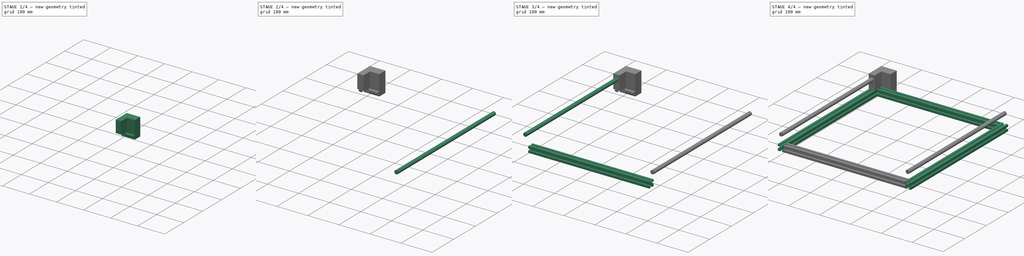
[diagram: build sequence overview — one tinted view per stage of 4, left to right]
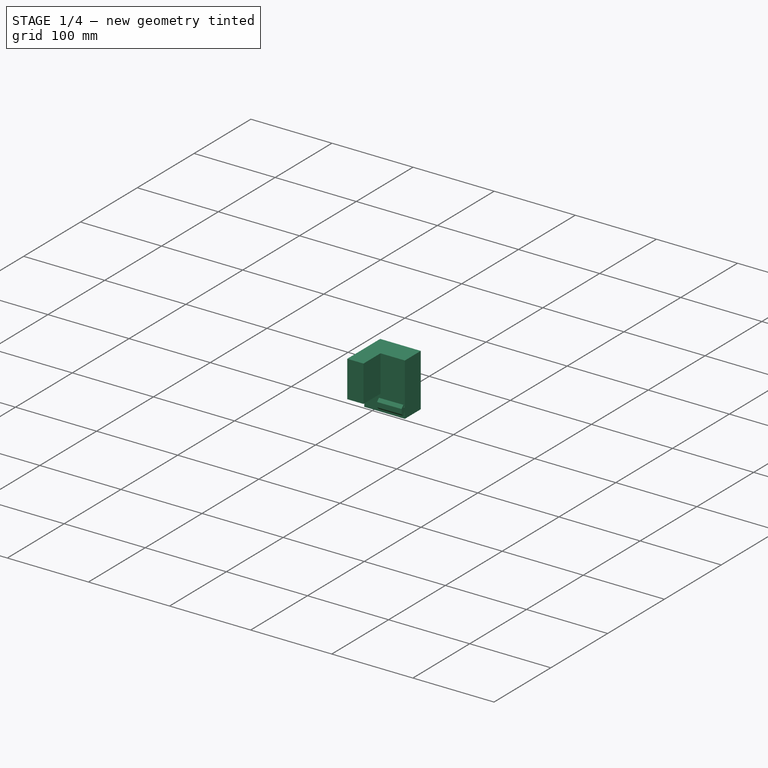
[diagram: stage 1 of 4 — iso view after this stage's code; geometry added in this stage tinted green]
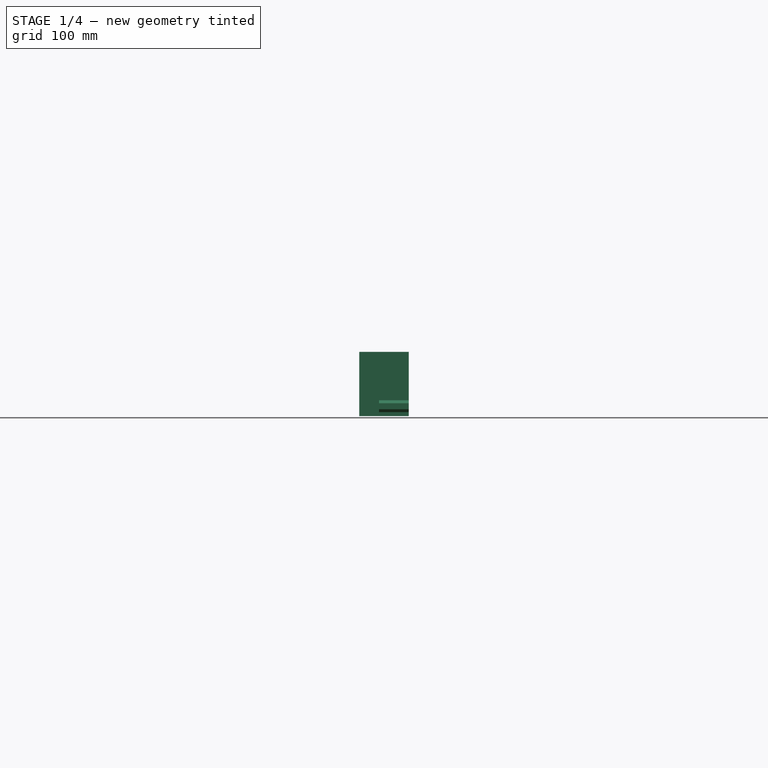
[diagram: stage 1 of 4 — front view after this stage's code; geometry added in this stage tinted green]
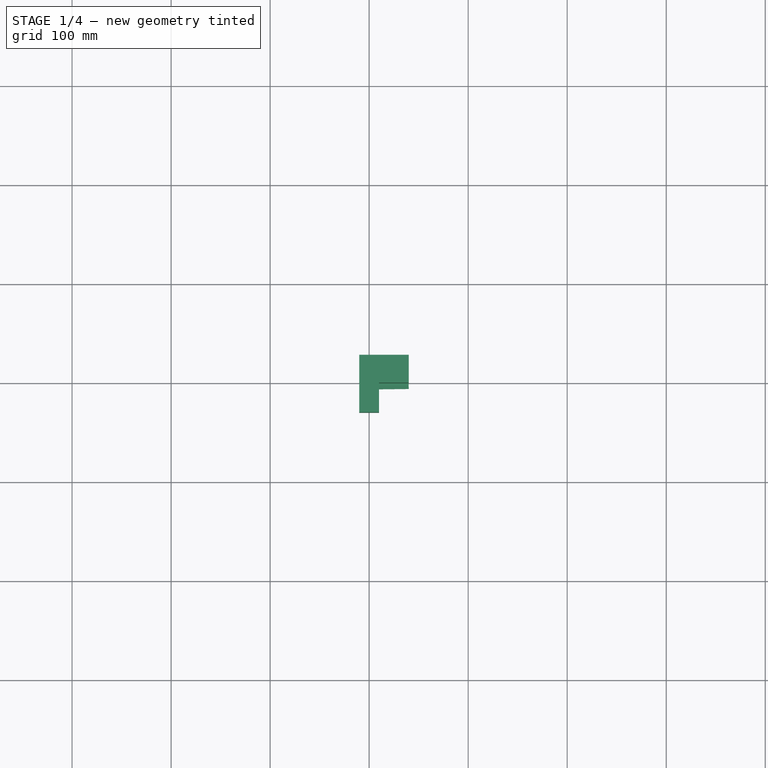
[diagram: stage 1 of 4 — top view after this stage's code; geometry added in this stage tinted green]
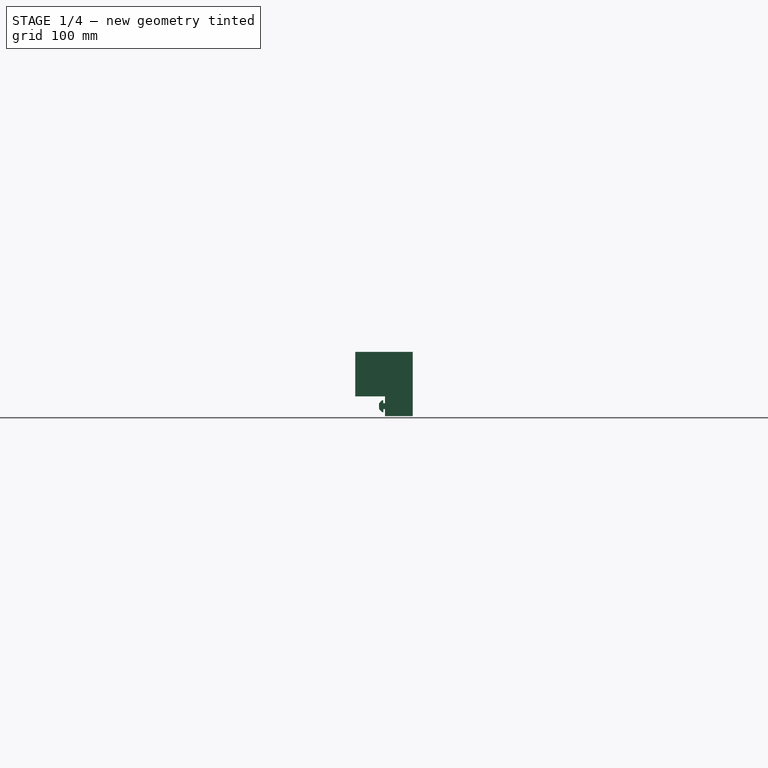
[diagram: stage 1 of 4 — right view after this stage's code; geometry added in this stage tinted green]
FCSTD DOCUMENT  (FreeCAD 0.16R)
Label: V1
License: All rights reserved
LicenseURL: http://en.wikipedia.org/wiki/All_rights_reserved
objects: Part::Feature×4, Part::Extrusion×4, Part::Cylinder×2, Sketcher::SketchObject×2, PartDesign::Pad×2, Part::Box×2, Part::MultiFuse×1
note: 19 computed .brp shape members not serialized (recipe doc carries the construction recipe); baked Part::Feature solids carry a one-line shape summary decoded from their .brp

FEATURE [PartDesign::Pad] Pad001  label="t_interior_X1_pad"
  Length = 30
  Length2 = 100
  Placement = pos=(10,-10,0) rot=(0,0.999938,0.01111;1.5708rad)
  Sketch = -> Sketch001
  Type = 0
FEATURE [Part::Box] Box  label="Cubo"
  Height = 65
  Length = 50
  Placement = pos=(-10,0,-10) rot=(0,0,1;0rad)
  Width = 28
FEATURE [Part::Box] Box001  label="Cubo001"
  Height = 45
  Length = 20
  Placement = pos=(-10,-30,10) rot=(0,0,1;0rad)
  Width = 30
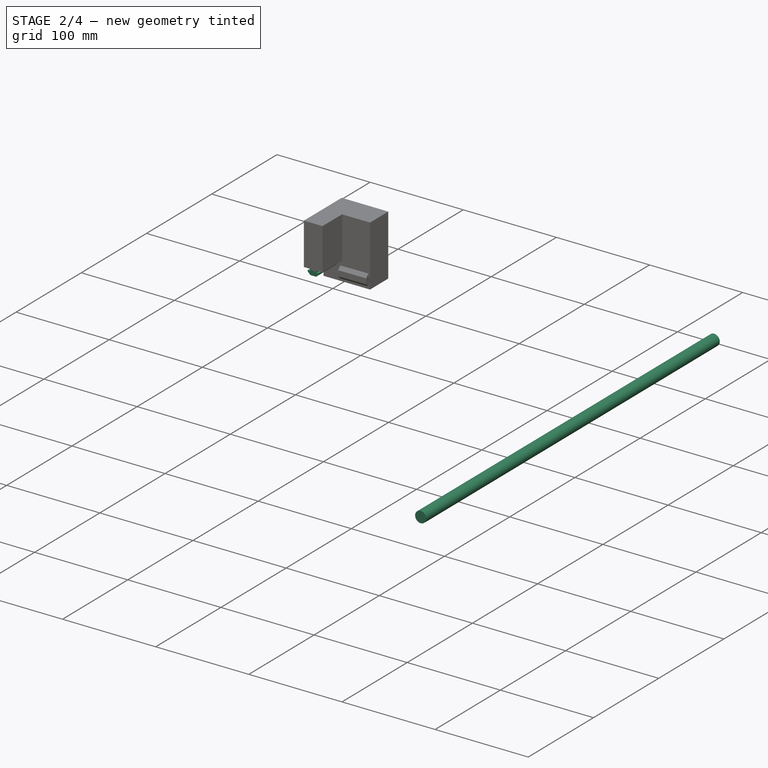
[diagram: stage 2 of 4 — iso view after this stage's code; geometry added in this stage tinted green]
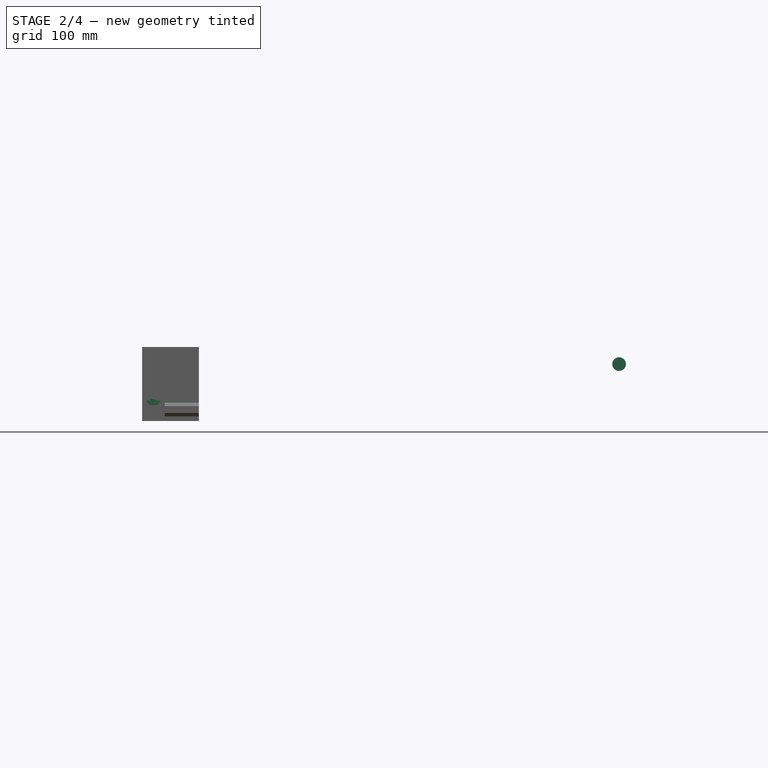
[diagram: stage 2 of 4 — front view after this stage's code; geometry added in this stage tinted green]
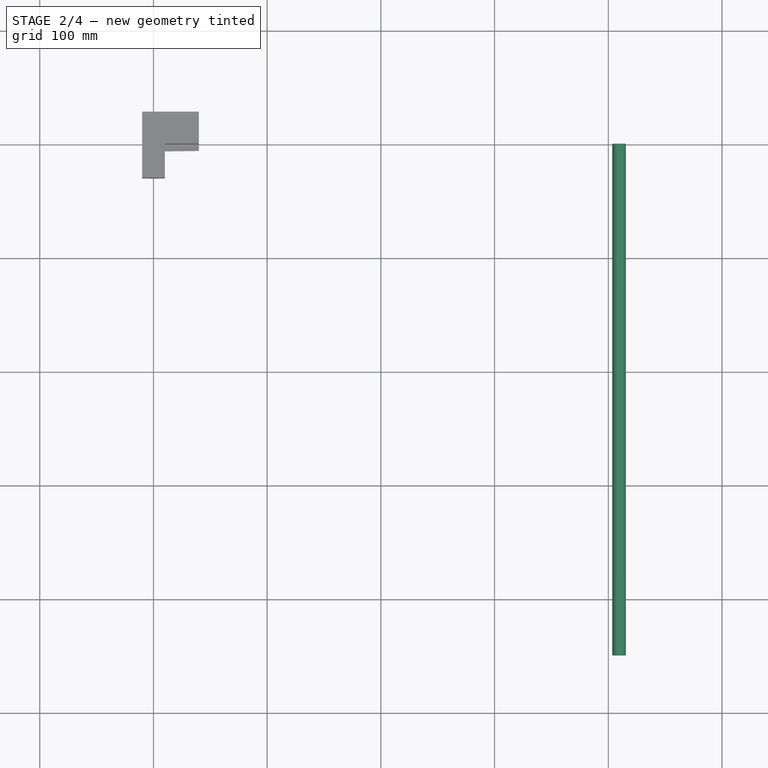
[diagram: stage 2 of 4 — top view after this stage's code; geometry added in this stage tinted green]
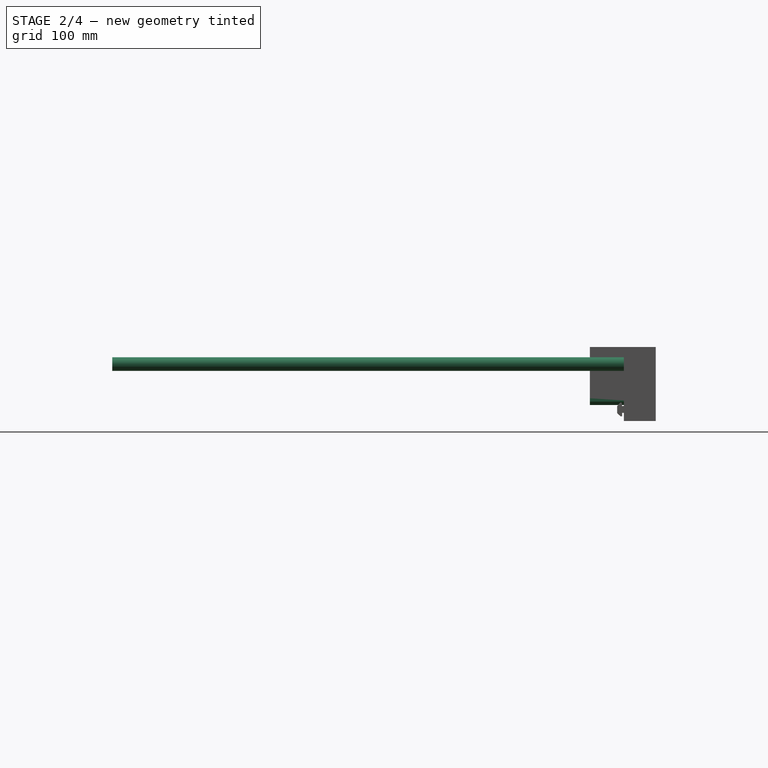
[diagram: stage 2 of 4 — right view after this stage's code; geometry added in this stage tinted green]
FEATURE [Part::Cylinder] Cylinder001  label="barra_Y2"
  Angle = 360
  Height = 450
  Placement = pos=(409.5,0,40) rot=(1,0,0;1.5708rad)
  Radius = 6
FEATURE [Sketcher::SketchObject] Sketch  label="t_interior_Y1"
  Placement = pos=(0,0,0) rot=(-1,0,0;4.71239rad)
  sketch-geometry (11):
    g0: LineSegment StartX=-3 StartY=10 StartZ=0 EndX=-3 EndY=8 EndZ=0
    g1: LineSegment StartX=-3 StartY=8 StartZ=0 EndX=-6 EndY=8 EndZ=0
    g2: LineSegment StartX=-6 StartY=8 StartZ=0 EndX=-6 EndY=7 EndZ=0
    g3: LineSegment StartX=-6 StartY=7 StartZ=0 EndX=-3 EndY=4 EndZ=0
    g4: LineSegment StartX=-3 StartY=4 StartZ=0 EndX=0 EndY=4 EndZ=0
    g5: LineSegment StartX=3 StartY=10 StartZ=0 EndX=3 EndY=8 EndZ=0
    g6: LineSegment StartX=3 StartY=8 StartZ=0 EndX=6 EndY=8 EndZ=0
    g7: LineSegment StartX=6 StartY=8 StartZ=0 EndX=6 EndY=7 EndZ=0
    g8: LineSegment StartX=6 StartY=7 StartZ=0 EndX=3 EndY=4 EndZ=0
    g9: LineSegment StartX=3 StartY=4 StartZ=0 EndX=0 EndY=4 EndZ=0
    g10: LineSegment StartX=-3 StartY=10 StartZ=0 EndX=3 EndY=10 EndZ=0
  constraints (32):
    c: Vertical(g0)
    c: Coincident(g0,g1)
    c: Horizontal(g1)
    c: Coincident(g1,g2)
    c: Coincident(g2,g3)
    c: Coincident(g3,g4)
    c: Horizontal(g4)
    c: PointOnObject(g4,g-2)
    c: DistanceX(g4,g4) = 3
    c: Vertical(g2)
    c: DistanceY(g2,g2) = 1
    c: DistanceX(g2,g3) = 3
    c: DistanceX(g1,g1) = 3
    c: DistanceY(g0,g0) = 2
    c: DistanceY(g3,g0) = 4
    c: DistanceY(g-1,g0) = 10
    c: Vertical(g5)
    c: Coincident(g5,g6)
    c: Horizontal(g6)
    c: Coincident(g6,g7)
    c: Coincident(g7,g8)
    c: Coincident(g8,g9)
    c: Horizontal(g9)
    c: Vertical(g7)
    c: Coincident(g10,g0)
    c: Coincident(g10,g5)
    c: Horizontal(g10)
    c: DistanceX(g10,g10) = 6
    c: DistanceX(g9,g9) = 3
    c: DistanceX(g6,g6) = 3
    c: DistanceY(g5,g5) = 2
    c: DistanceY(g7,g7) = 1
FEATURE [Sketcher::SketchObject] Sketch001  label="t_interior_X1"
  Placement = pos=(10,-10,0) rot=(0,0.999938,0.01111;1.5708rad)
  sketch-geometry (11):
    g0: LineSegment StartX=-3 StartY=10 StartZ=0 EndX=-3 EndY=8 EndZ=0
    g1: LineSegment StartX=-3 StartY=8 StartZ=0 EndX=-6 EndY=8 EndZ=0
    g2: LineSegment StartX=-6 StartY=8 StartZ=0 EndX=-6 EndY=7 EndZ=0
    g3: LineSegment StartX=-6 StartY=7 StartZ=0 EndX=-3 EndY=4 EndZ=0
    g4: LineSegment StartX=-3 StartY=4 StartZ=0 EndX=0 EndY=4 EndZ=0
    g5: LineSegment StartX=3 StartY=10 StartZ=0 EndX=3 EndY=8 EndZ=0
    g6: LineSegment StartX=3 StartY=8 StartZ=0 EndX=6 EndY=8 EndZ=0
    g7: LineSegment StartX=6 StartY=8 StartZ=0 EndX=6 EndY=7 EndZ=0
    g8: LineSegment StartX=6 StartY=7 StartZ=0 EndX=3 EndY=4 EndZ=0
    g9: LineSegment StartX=3 StartY=4 StartZ=0 EndX=0 EndY=4 EndZ=0
    g10: LineSegment StartX=-3 StartY=10 StartZ=0 EndX=3 EndY=10 EndZ=0
  constraints (28):
    c: Vertical(g0)
    c: Coincident(g0,g1)
    c: Horizontal(g1)
    c: Coincident(g1,g2)
    c: Coincident(g2,g3)
    c: Coincident(g3,g4)
    c: Horizontal(g4)
    c: PointOnObject(g4,g-2)
    c: DistanceX(g4,g4) = 3
    c: Vertical(g2)
    c: DistanceY(g2,g2) = 1
    c: DistanceX(g2,g3) = 3
    c: DistanceX(g1,g1) = 3
    c: DistanceY(g0,g0) = 2
    c: DistanceY(g3,g0) = 4
    c: DistanceY(g-1,g0) = 10
    c: Vertical(g5)
    c: Coincident(g5,g6)
    c: Horizontal(g6)
    c: Coincident(g6,g7)
    c: Coincident(g7,g8)
    c: Coincident(g8,g9)
    c: Horizontal(g9)
    c: Vertical(g7)
    c: Coincident(g10,g0)
    c: Coincident(g10,g5)
    c: Horizontal(g10)
    c: DistanceX(g10,g10) = 6
FEATURE [PartDesign::Pad] Pad  label="t_interior_Y1_pad"
  Length = 30
  Length2 = 100
  Placement = pos=(0,0,0) rot=(-1,0,0;4.71239rad)
  Sketch = -> Sketch
  Type = 0
FEATURE [Part::MultiFuse] Fusion  label="esquina_crudo"
  Shapes = -> [Box,Box001,Pad001,Pad]
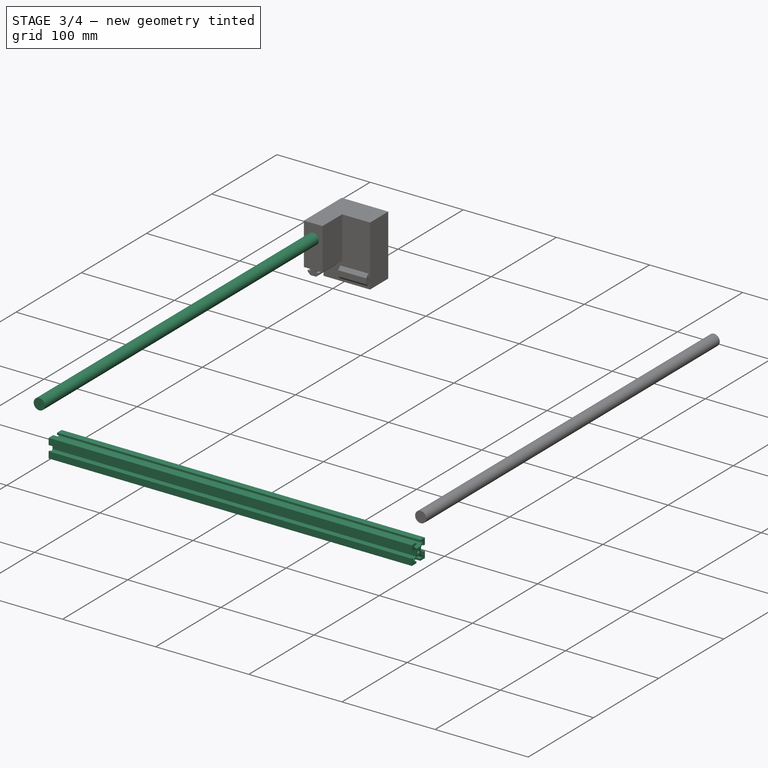
[diagram: stage 3 of 4 — iso view after this stage's code; geometry added in this stage tinted green]
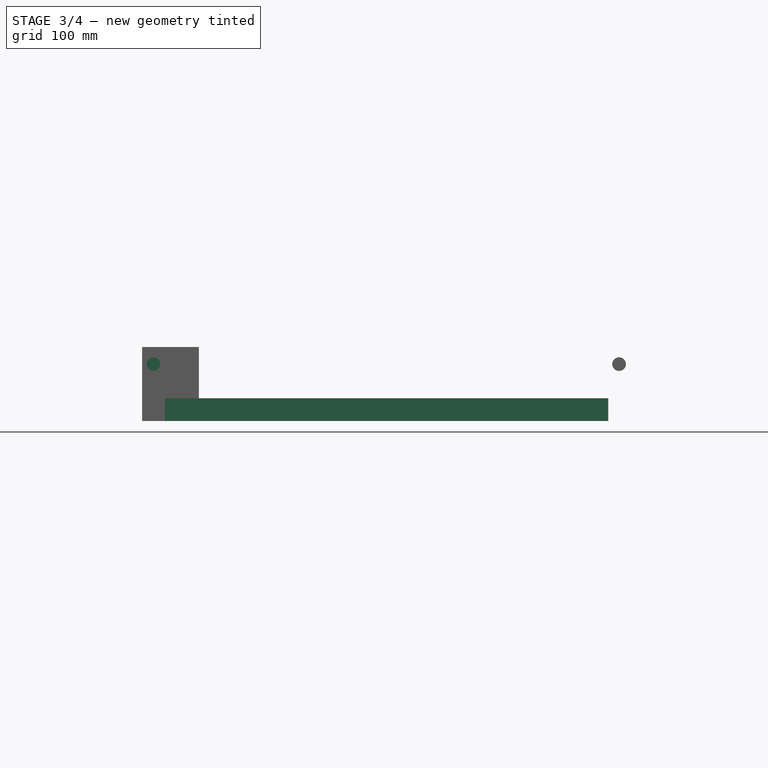
[diagram: stage 3 of 4 — front view after this stage's code; geometry added in this stage tinted green]
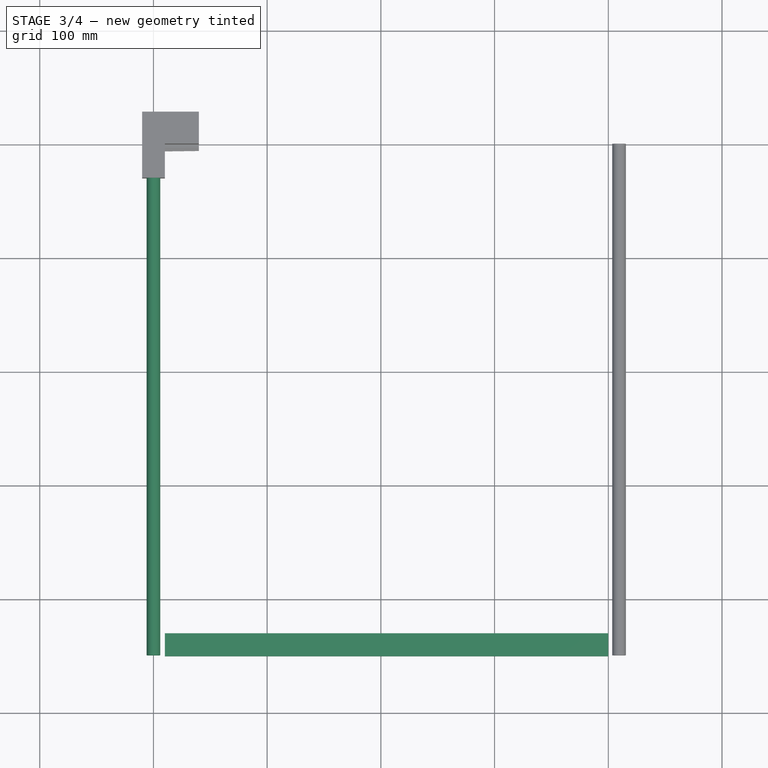
[diagram: stage 3 of 4 — top view after this stage's code; geometry added in this stage tinted green]
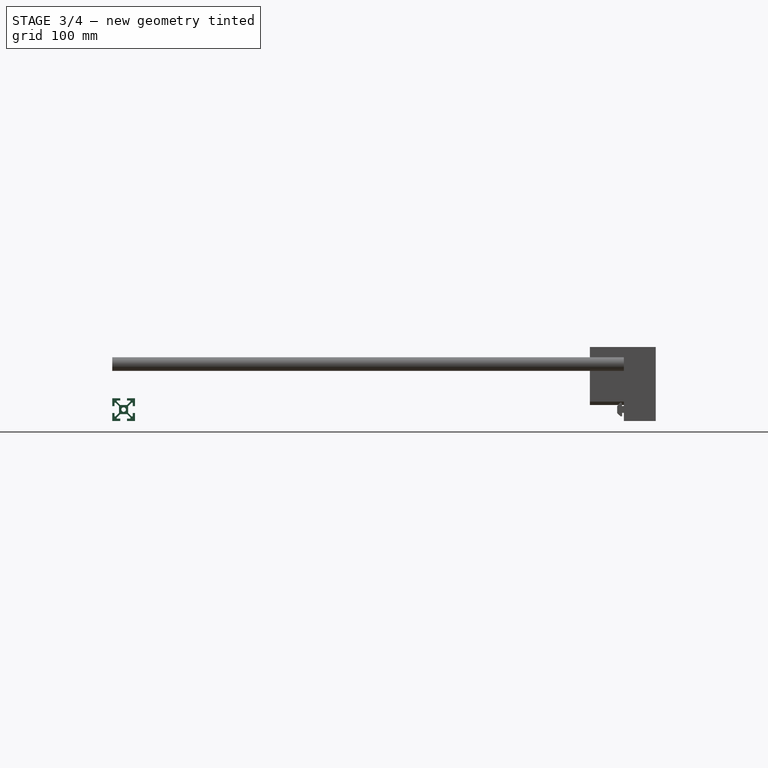
[diagram: stage 3 of 4 — right view after this stage's code; geometry added in this stage tinted green]
FEATURE [Part::Feature] Pocket_cs003  label="bocetoPerfil003"
  shape: bbox 20 x 20 x 2e-07 mm, 0 faces, 0 solids (baked)
FEATURE [Part::Extrusion] Extrude003  label="perfil_X2"
  Base = -> Pocket_cs003
  Dir = (0,0,390)
  Placement = pos=(9.5,-440,0) rot=(0,1,0;1.5708rad)
  Solid = true
FEATURE [Part::Cylinder] Cylinder  label="barra_Y1"
  Angle = 360
  Height = 450
  Placement = pos=(0,0,40) rot=(1,0,0;1.5708rad)
  Radius = 6
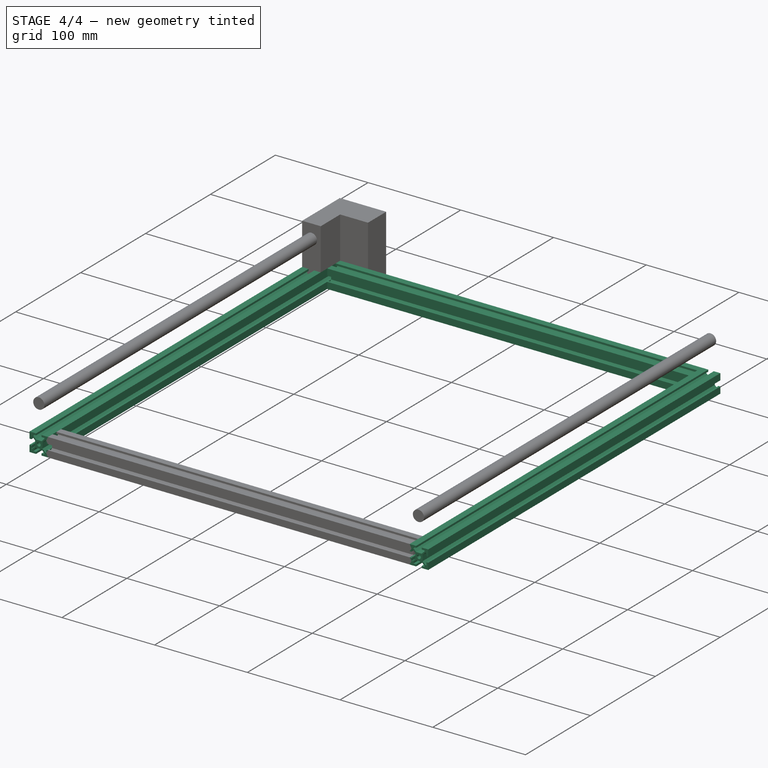
[diagram: stage 4 of 4 — iso view after this stage's code; geometry added in this stage tinted green]
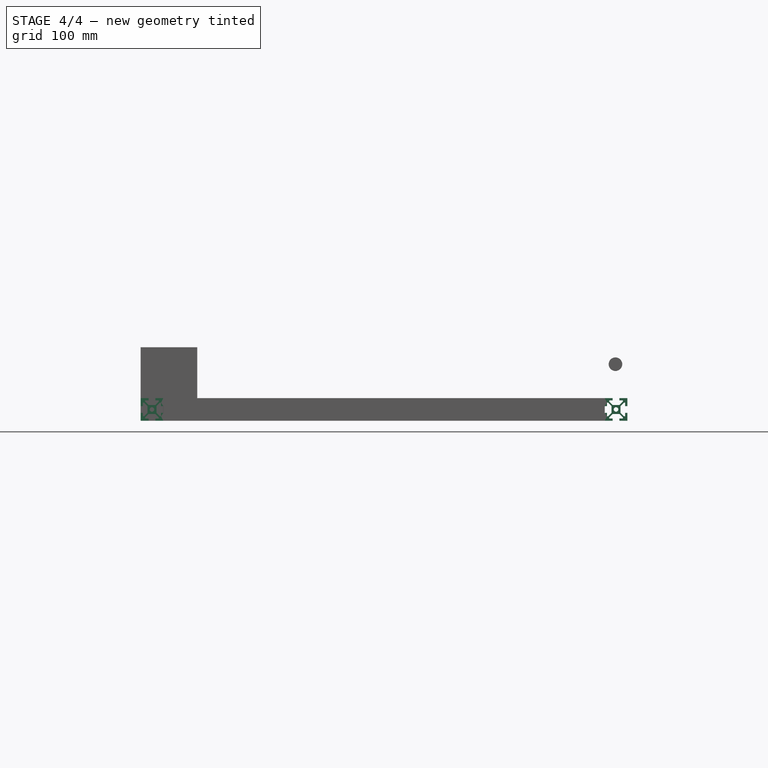
[diagram: stage 4 of 4 — front view after this stage's code; geometry added in this stage tinted green]
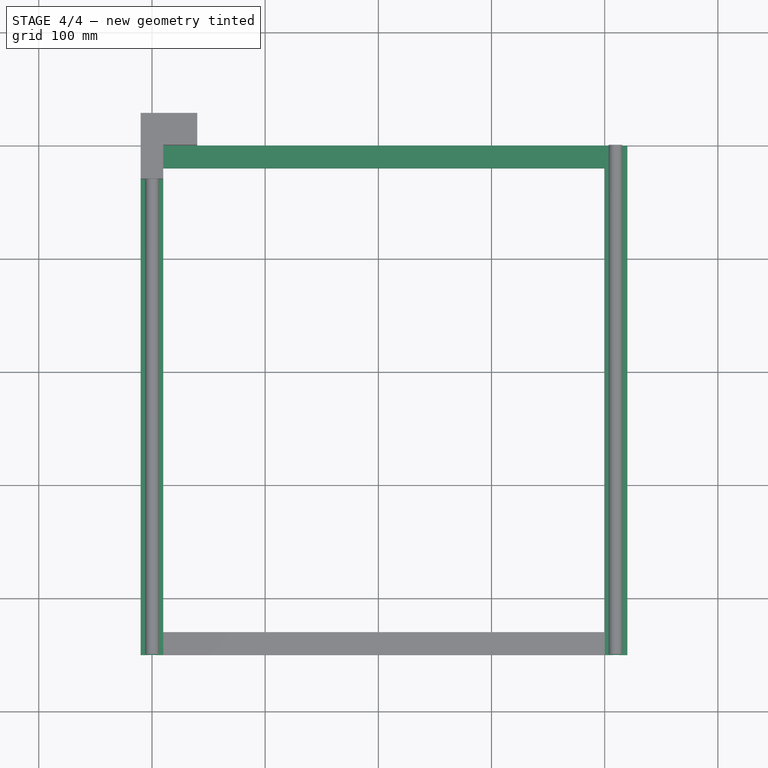
[diagram: stage 4 of 4 — top view after this stage's code; geometry added in this stage tinted green]
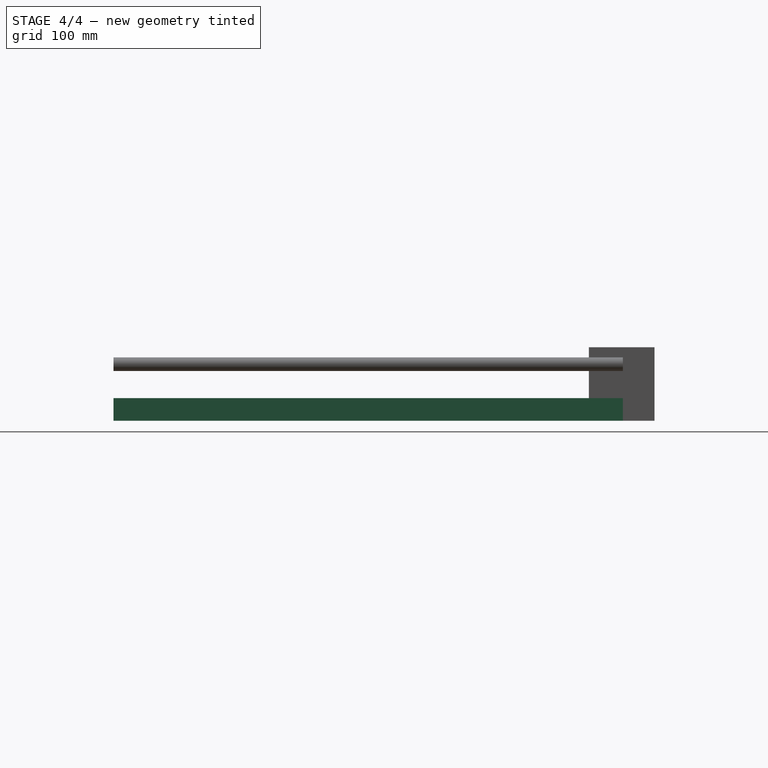
[diagram: stage 4 of 4 — right view after this stage's code; geometry added in this stage tinted green]
FEATURE [Part::Feature] Pocket_cs  label="bocetoPerfil"
  shape: bbox 20 x 20 x 2e-07 mm, 0 faces, 0 solids (baked)
FEATURE [Part::Extrusion] Extrude  label="perfil_Y1"
  Base = -> Pocket_cs
  Dir = (0,0,450)
  Placement = pos=(0,0.5,0) rot=(1,0,0;1.5708rad)
  Solid = true
FEATURE [Part::Feature] Pocket_cs001  label="bocetoPerfil001"
  shape: bbox 20 x 20 x 2e-07 mm, 0 faces, 0 solids (baked)
FEATURE [Part::Extrusion] Extrude001  label="perfil_Y2"
  Base = -> Pocket_cs001
  Dir = (0,0,450)
  Placement = pos=(410,0.5,0) rot=(1,0,0;1.5708rad)
  Solid = true
FEATURE [Part::Feature] Pocket_cs002  label="bocetoPerfil002"
  shape: bbox 20 x 20 x 2e-07 mm, 0 faces, 0 solids (baked)
FEATURE [Part::Extrusion] Extrude002  label="perfil_X1"
  Base = -> Pocket_cs002
  Dir = (0,0,390)
  Placement = pos=(9.5,-10,0) rot=(0,1,0;1.5708rad)
  Solid = true
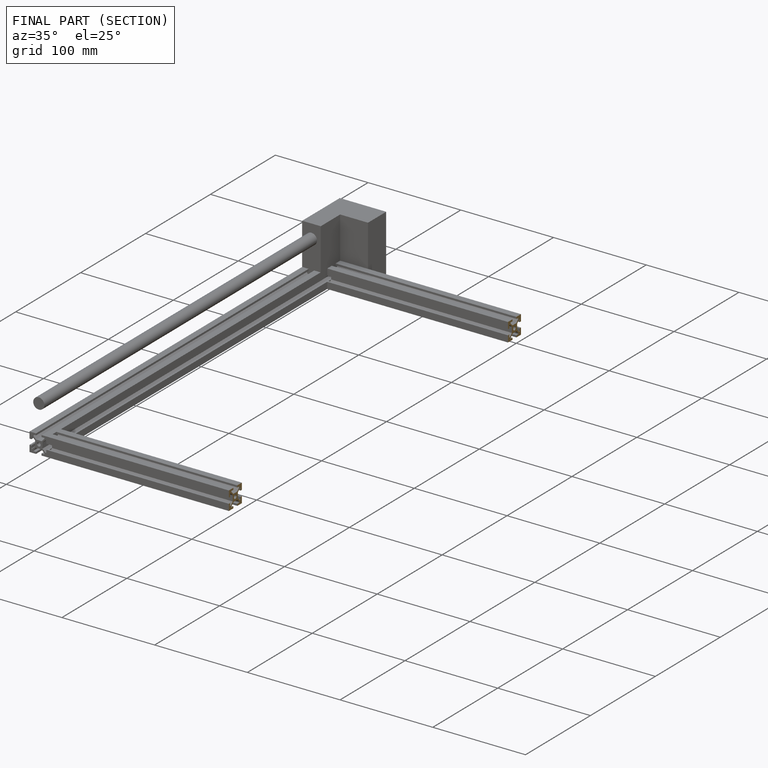
[diagram: finished part — half-section view (interior)]
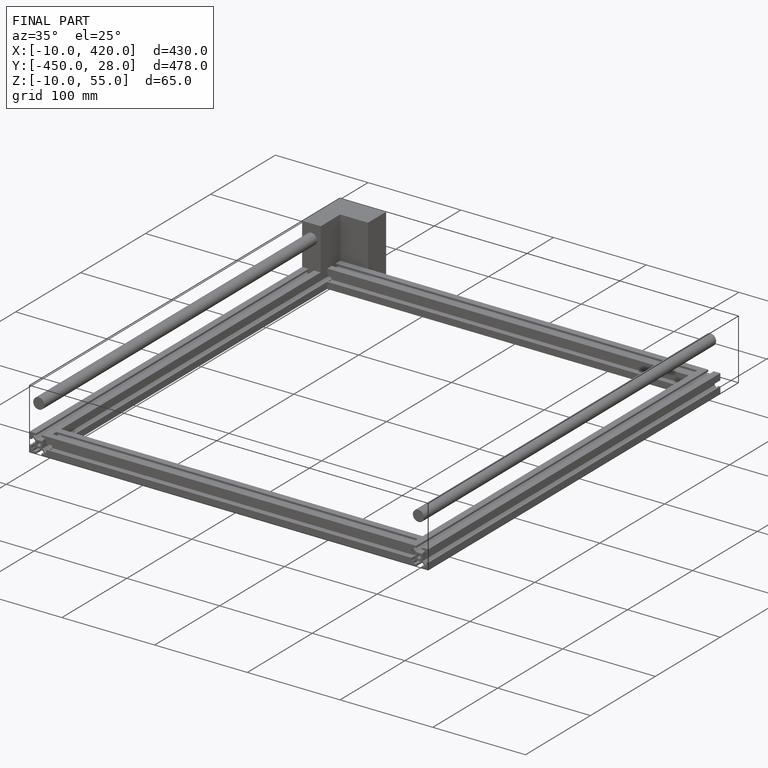
[diagram: finished part — iso view with bounding-box wireframe]
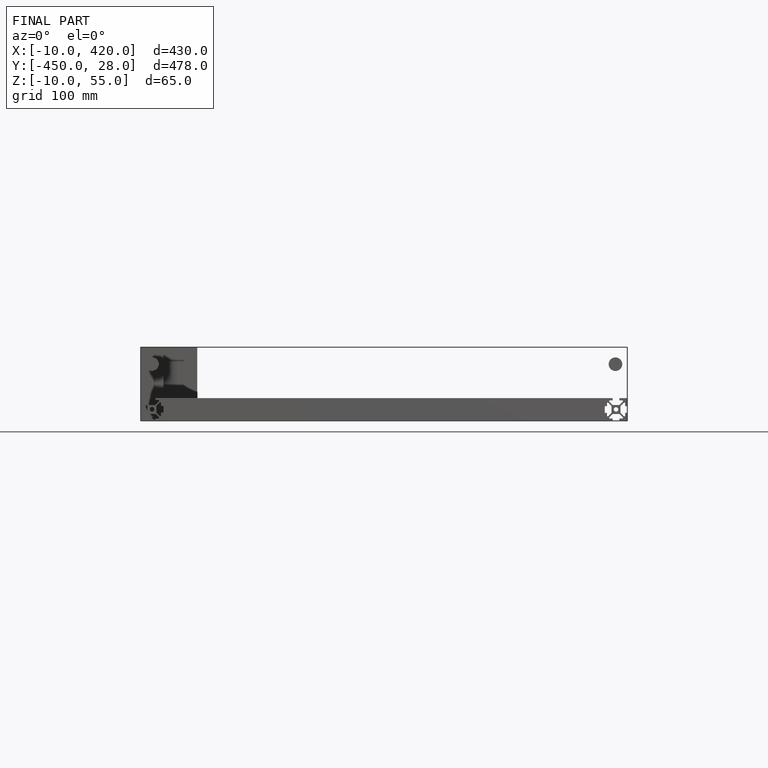
[diagram: finished part — front view with bounding-box wireframe]
